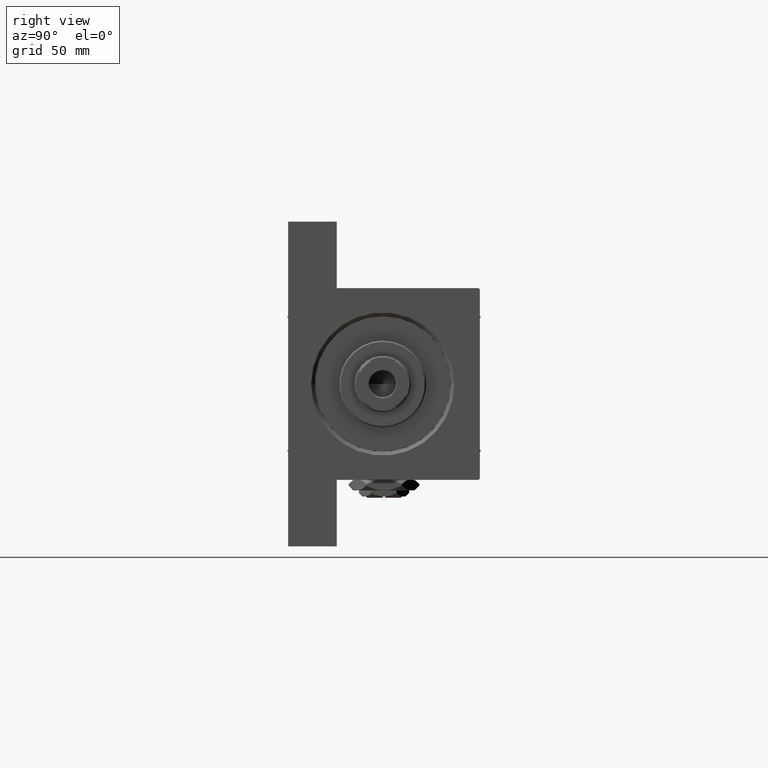
[diagram: clean part render]
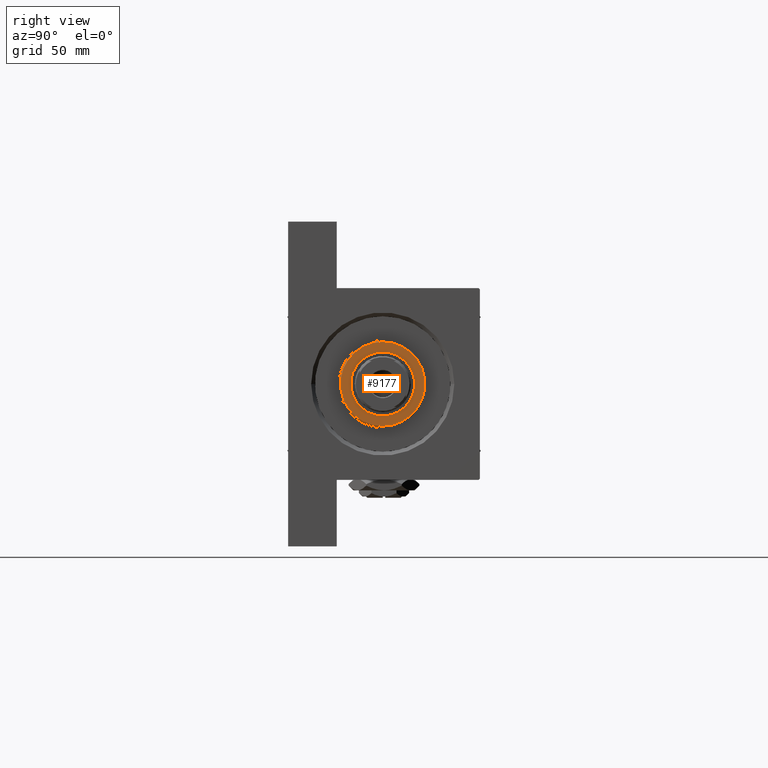
[diagram: same view with one face highlighted and labeled with its STEP entity id]
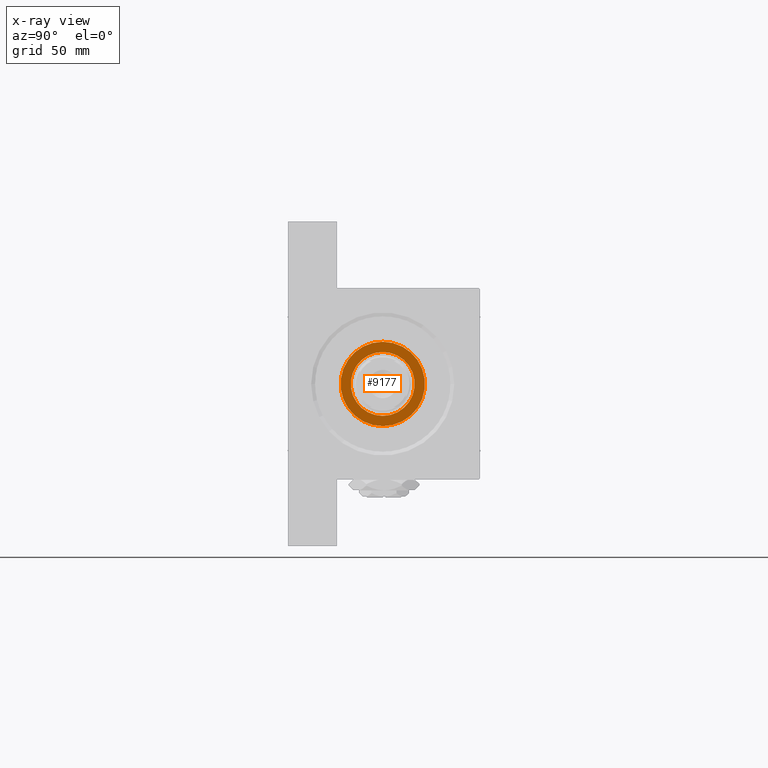
[diagram: x-ray of the same camera — body ghosted, the highlighted face saturated]
A machine part, right view. The second image highlights one B-rep face of the part: STEP entity #9177.
The next image is the same camera in x-ray: the body ghosted, the highlighted face saturated — about 0% of this face is hidden behind the body in this view.
In plain terms, the highlighted planar face has unit normal (1, 0, 0).
Its self-contained STEP definition (entity closure, byte-faithful):
#455 = ORIENTED_EDGE ( 'NONE', *, *, #3076, .T. ) ;
#2948 = AXIS2_PLACEMENT_3D ( 'NONE', #45516, #3452, #45278 ) ;
#3076 = EDGE_CURVE ( 'NONE', #20400, #4221, #14532, .T. ) ;
#3177 = CARTESIAN_POINT ( 'NONE',  ( -16.50000000000000000, 0.000000000000000000, 37.69999999999999574 ) ) ;
#3452 = DIRECTION ( 'NONE',  ( 0.000000000000000000, 0.000000000000000000, 1.000000000000000000 ) ) ;
#4221 = VERTEX_POINT ( 'NONE', #3177 ) ;
#4562 = DIRECTION ( 'NONE',  ( 0.000000000000000000, 0.000000000000000000, 1.000000000000000000 ) ) ;
#5639 = FACE_OUTER_BOUND ( 'NONE', #19362, .T. ) ;
#6120 = CIRCLE ( 'NONE', #2948, 12.50000000000000000 ) ;
#7557 = CARTESIAN_POINT ( 'NONE',  ( 0.000000000000000000, 0.000000000000000000, 37.69999999999999574 ) ) ;
#8244 = AXIS2_PLACEMENT_3D ( 'NONE', #40709, #40224, #28772 ) ;
#9177 = ADVANCED_FACE ( 'NONE', ( #17825, #5639 ), #20825, .T. ) ;
#14532 = CIRCLE ( 'NONE', #32006, 16.50000000000000000 ) ;
#15455 = CARTESIAN_POINT ( 'NONE',  ( -12.50000000000000000, 1.530808498934191521E-15, 37.69999999999999574 ) ) ;
#16666 = EDGE_CURVE ( 'NONE', #18064, #44921, #6120, .T. ) ;
#17825 = FACE_BOUND ( 'NONE', #38790, .T. ) ;
#18064 = VERTEX_POINT ( 'NONE', #40172 ) ;
#19362 = EDGE_LOOP ( 'NONE', ( #45118, #455 ) ) ;
#19517 = DIRECTION ( 'NONE',  ( 1.000000000000000000, 0.000000000000000000, 0.000000000000000000 ) ) ;
#20400 = VERTEX_POINT ( 'NONE', #25768 ) ;
#20825 = PLANE ( 'NONE',  #8244 ) ;
#20924 = CIRCLE ( 'NONE', #40033, 12.50000000000000000 ) ;
#21217 = EDGE_CURVE ( 'NONE', #44921, #18064, #20924, .T. ) ;
#21658 = DIRECTION ( 'NONE',  ( 0.000000000000000000, 0.000000000000000000, 1.000000000000000000 ) ) ;
#23910 = CIRCLE ( 'NONE', #36642, 16.50000000000000000 ) ;
#25768 = CARTESIAN_POINT ( 'NONE',  ( 16.50000000000000000, 2.051283388571816887E-15, 37.69999999999999574 ) ) ;
#27967 = DIRECTION ( 'NONE',  ( 1.000000000000000000, 0.000000000000000000, 0.000000000000000000 ) ) ;
#28772 = DIRECTION ( 'NONE',  ( 1.000000000000000000, 0.000000000000000000, -0.000000000000000000 ) ) ;
#32006 = AXIS2_PLACEMENT_3D ( 'NONE', #47316, #21658, #32382 ) ;
#32382 = DIRECTION ( 'NONE',  ( 1.000000000000000000, 0.000000000000000000, 0.000000000000000000 ) ) ;
#36556 = ORIENTED_EDGE ( 'NONE', *, *, #21217, .F. ) ;
#36642 = AXIS2_PLACEMENT_3D ( 'NONE', #7557, #4562, #19517 ) ;
#38599 = ORIENTED_EDGE ( 'NONE', *, *, #16666, .F. ) ;
#38790 = EDGE_LOOP ( 'NONE', ( #38599, #36556 ) ) ;
#40033 = AXIS2_PLACEMENT_3D ( 'NONE', #46908, #42903, #27967 ) ;
#40172 = CARTESIAN_POINT ( 'NONE',  ( 12.50000000000000000, 0.000000000000000000, 37.69999999999999574 ) ) ;
#40224 = DIRECTION ( 'NONE',  ( 0.000000000000000000, 0.000000000000000000, 1.000000000000000000 ) ) ;
#40709 = CARTESIAN_POINT ( 'NONE',  ( 0.000000000000000000, 0.000000000000000000, 37.69999999999999574 ) ) ;
#42903 = DIRECTION ( 'NONE',  ( 0.000000000000000000, 0.000000000000000000, 1.000000000000000000 ) ) ;
#44921 = VERTEX_POINT ( 'NONE', #15455 ) ;
#45118 = ORIENTED_EDGE ( 'NONE', *, *, #46457, .T. ) ;
#45278 = DIRECTION ( 'NONE',  ( 1.000000000000000000, 0.000000000000000000, 0.000000000000000000 ) ) ;
#45516 = CARTESIAN_POINT ( 'NONE',  ( 0.000000000000000000, 0.000000000000000000, 37.69999999999999574 ) ) ;
#46457 = EDGE_CURVE ( 'NONE', #4221, #20400, #23910, .T. ) ;
#46908 = CARTESIAN_POINT ( 'NONE',  ( 0.000000000000000000, 0.000000000000000000, 37.69999999999999574 ) ) ;
#47316 = CARTESIAN_POINT ( 'NONE',  ( 0.000000000000000000, 0.000000000000000000, 37.69999999999999574 ) ) ;